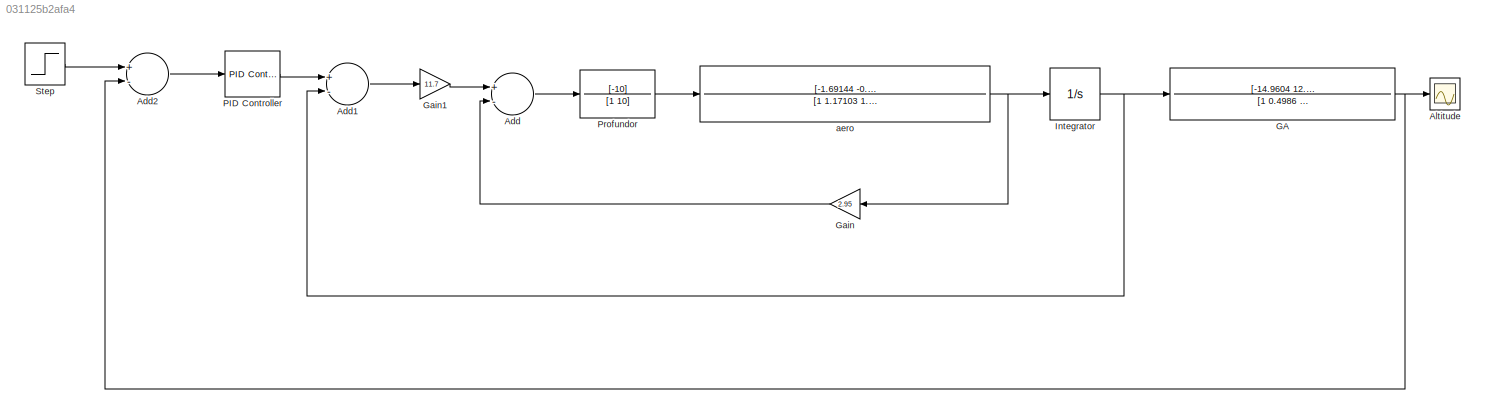
MODEL slx_031125b2afa4
KIND model
CONFIG AbsTol = auto
CONFIG FixedStep = auto
CONFIG MaxStep = auto
CONFIG MinStep = auto
CONFIG RelTol = 1e-3
CONFIG SampleTimeConstraint = Unconstrained
CONFIG Solver = VariableStepAuto
CONFIG SolverMode = Auto
CONFIG SolverName = VariableStepAuto
CONFIG StartTime = 0.0
CONFIG StopTime = 120.0
BLOCK [Sum] Add
  InputSameDT = off
  Inputs = +-
  OutDataTypeStr = Inherit: Inherit via internal rule
  Ports = [2, 1]
  SaturateOnIntegerOverflow = off
BLOCK [Sum] Add1
  InputSameDT = off
  Inputs = +-
  OutDataTypeStr = Inherit: Inherit via internal rule
  Ports = [2, 1]
  SaturateOnIntegerOverflow = off
BLOCK [Sum] Add2
  InputSameDT = off
  Inputs = +-
  OutDataTypeStr = Inherit: Inherit via internal rule
  Ports = [2, 1]
  SaturateOnIntegerOverflow = off
BLOCK [Scope] Altitude
  Ports = [1]
  ScopeSpecificationString = Simulink.scopes.TimeScopeBlockCfg('CurrentConfiguration', extmgr.ConfigurationSet(extmgr.Configuration('Core','General UI',true),extmgr.Configuration('Core','Source UI',true),extmgr.Configuration('Sources','WiredSimulink',true,'DataLoggingLimitDataPoints',true,'DataLoggingSaveFormat','Array','DataLoggingDecimation','1','DataLoggingDecimateData',true),extmgr.Configuration('Visuals','Time Domain',tr...<+1490ch>
BLOCK [TransferFcn] GA
  Denominator = [1 0.4986    0.0054         0]
  Numerator = [-14.9604 12.0642 331.2070 0.3858]
BLOCK [Gain] Gain
  Gain = 2.95
  OutDataTypeStr = Inherit: Inherit via internal rule
  ParamDataTypeStr = Inherit: Inherit via internal rule
  SaturateOnIntegerOverflow = off
BLOCK [Gain] Gain1
  Gain = 11.7
  OutDataTypeStr = Inherit: Inherit via internal rule
  ParamDataTypeStr = Inherit: Inherit via internal rule
  SaturateOnIntegerOverflow = off
BLOCK [Integrator] Integrator
  Ports = [1, 1]
BLOCK [Reference] PID Controller  REF=simulink/Continuous/PID Controller
  Ports = [1, 1]
  SourceBlock = simulink/Continuous/PID Controller
  SourceType = PID 1dof
BLOCK [TransferFcn] Profundor
  Denominator = [1 10]
  Numerator = [-10]
BLOCK [Step] Step
  After = 1000
  SampleTime = 0
  Time = 20
BLOCK [TransferFcn] aero
  Denominator = [1 1.17103 1.55405 0.012538 0.0072771]
  Numerator = [-1.69144 -0.84341 -0.0099096 0]
LINE Add1:1 -> Gain1:1
LINE Add2:1 -> PID Controller:1
LINE Add:1 -> Profundor:1
NET GA:1 -> Add2:2, Altitude:1
LINE Gain1:1 -> Add:1
LINE Gain:1 -> Add:2
NET Integrator:1 -> Add1:2, GA:1
LINE PID Controller:1 -> Add1:1
LINE Profundor:1 -> aero:1
LINE Step:1 -> Add2:1
NET aero:1 -> Gain:1, Integrator:1
note: NET lines group one-source signal fan-out (src -> all destinations, sorted); 1:1 wires keep LINE
